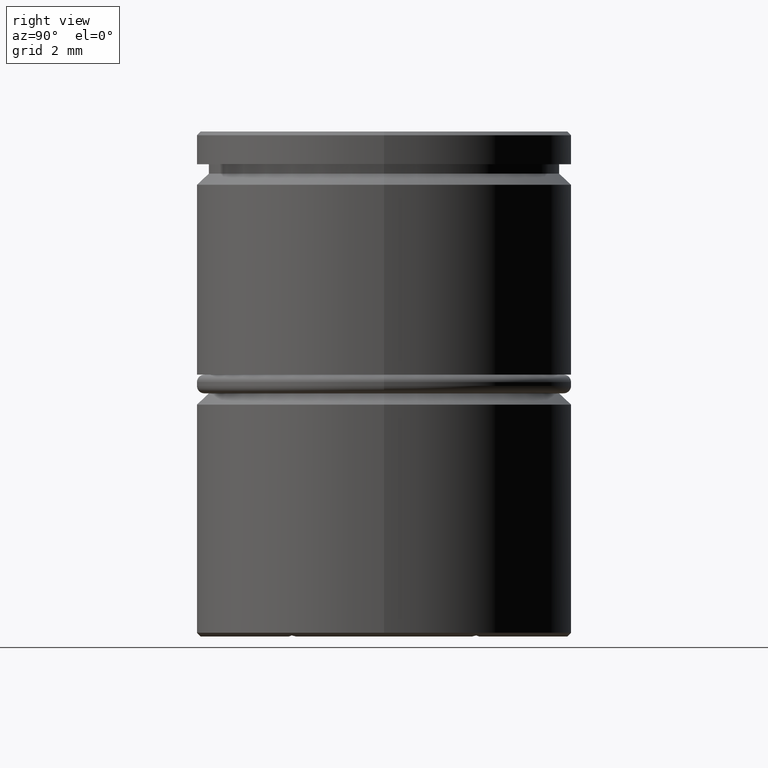
[diagram: clean part render]
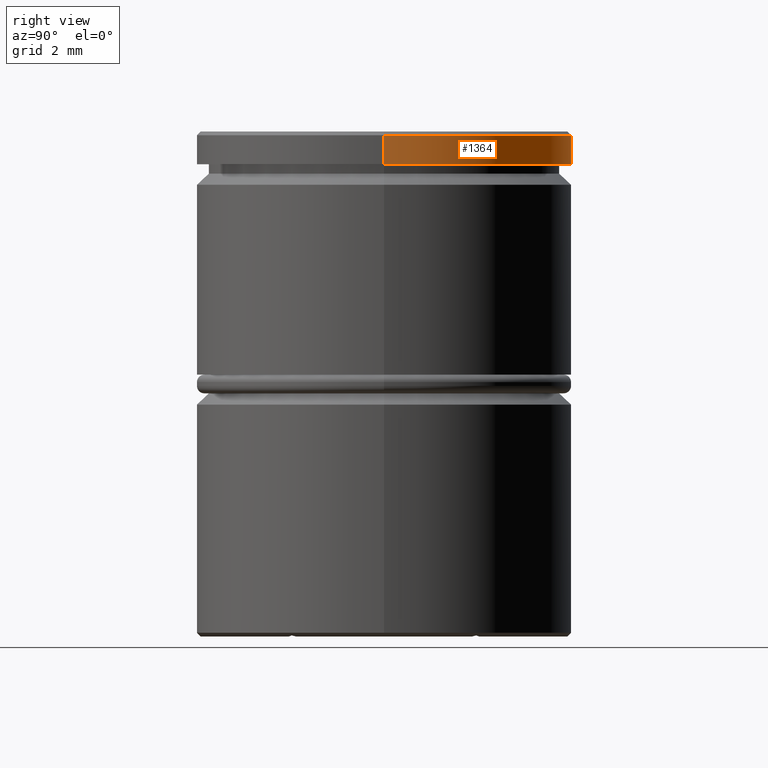
[diagram: same view with one face highlighted and labeled with its STEP entity id]
A machine part, right view. The second image highlights one B-rep face of the part: STEP entity #1364.
In plain terms, the highlighted cylindrical surface (partial cylindrical patch) has radius 5 mm, axis along (-0, -0, 1).
Its self-contained STEP definition (entity closure, byte-faithful):
#8 = ORIENTED_EDGE ( 'NONE', *, *, #1347, .T. ) ;
#24 = EDGE_CURVE ( 'NONE', #83, #971, #110, .T. ) ;
#79 = AXIS2_PLACEMENT_3D ( 'NONE', #919, #714, #297 ) ;
#83 = VERTEX_POINT ( 'NONE', #428 ) ;
#110 = LINE ( 'NONE', #449, #826 ) ;
#125 = VECTOR ( 'NONE', #899, 1000.000000000000000 ) ;
#205 = EDGE_LOOP ( 'NONE', ( #8, #726, #844, #373 ) ) ;
#223 = AXIS2_PLACEMENT_3D ( 'NONE', #669, #230, #772 ) ;
#230 = DIRECTION ( 'NONE',  ( -0.000000000000000000, -0.000000000000000000, 1.000000000000000000 ) ) ;
#238 = EDGE_CURVE ( 'NONE', #488, #971, #310, .T. ) ;
#297 = DIRECTION ( 'NONE',  ( 1.000000000000000000, 0.000000000000000000, 0.000000000000000000 ) ) ;
#310 = CIRCLE ( 'NONE', #79, 5.000000000000000000 ) ;
#317 = AXIS2_PLACEMENT_3D ( 'NONE', #1193, #1187, #360 ) ;
#331 = CARTESIAN_POINT ( 'NONE',  ( -5.000000000000000000, 6.123233995736766282E-16, -0.09999999999999506506 ) ) ;
#360 = DIRECTION ( 'NONE',  ( 1.000000000000000000, 0.000000000000000000, 0.000000000000000000 ) ) ;
#373 = ORIENTED_EDGE ( 'NONE', *, *, #24, .F. ) ;
#428 = CARTESIAN_POINT ( 'NONE',  ( 5.000000000000000000, 0.000000000000000000, -0.8749999999999998890 ) ) ;
#449 = CARTESIAN_POINT ( 'NONE',  ( 5.000000000000000000, 0.000000000000000000, 0.000000000000000000 ) ) ;
#488 = VERTEX_POINT ( 'NONE', #331 ) ;
#669 = CARTESIAN_POINT ( 'NONE',  ( 0.000000000000000000, 0.000000000000000000, -0.8749999999999998890 ) ) ;
#704 = CARTESIAN_POINT ( 'NONE',  ( -5.000000000000000000, 6.123233995736766282E-16, 0.000000000000000000 ) ) ;
#714 = DIRECTION ( 'NONE',  ( 0.000000000000000000, 0.000000000000000000, -1.000000000000000000 ) ) ;
#726 = ORIENTED_EDGE ( 'NONE', *, *, #1203, .T. ) ;
#772 = DIRECTION ( 'NONE',  ( 1.000000000000000000, 0.000000000000000000, 0.000000000000000000 ) ) ;
#826 = VECTOR ( 'NONE', #1288, 1000.000000000000000 ) ;
#844 = ORIENTED_EDGE ( 'NONE', *, *, #238, .T. ) ;
#860 = CARTESIAN_POINT ( 'NONE',  ( 5.000000000000000000, 0.000000000000000000, -0.09999999999999506506 ) ) ;
#899 = DIRECTION ( 'NONE',  ( -0.000000000000000000, -0.000000000000000000, 1.000000000000000000 ) ) ;
#919 = CARTESIAN_POINT ( 'NONE',  ( 0.000000000000000000, 0.000000000000000000, -0.09999999999999506506 ) ) ;
#971 = VERTEX_POINT ( 'NONE', #860 ) ;
#1035 = CARTESIAN_POINT ( 'NONE',  ( -5.000000000000000000, 6.123233995736766282E-16, -0.8749999999999998890 ) ) ;
#1089 = CYLINDRICAL_SURFACE ( 'NONE', #317, 5.000000000000000000 ) ;
#1130 = LINE ( 'NONE', #704, #125 ) ;
#1179 = FACE_OUTER_BOUND ( 'NONE', #205, .T. ) ;
#1187 = DIRECTION ( 'NONE',  ( -0.000000000000000000, -0.000000000000000000, 1.000000000000000000 ) ) ;
#1193 = CARTESIAN_POINT ( 'NONE',  ( 0.000000000000000000, 0.000000000000000000, 0.000000000000000000 ) ) ;
#1203 = EDGE_CURVE ( 'NONE', #1272, #488, #1130, .T. ) ;
#1272 = VERTEX_POINT ( 'NONE', #1035 ) ;
#1288 = DIRECTION ( 'NONE',  ( -0.000000000000000000, -0.000000000000000000, 1.000000000000000000 ) ) ;
#1332 = CIRCLE ( 'NONE', #223, 5.000000000000000000 ) ;
#1347 = EDGE_CURVE ( 'NONE', #83, #1272, #1332, .T. ) ;
#1364 = ADVANCED_FACE ( 'NONE', ( #1179 ), #1089, .T. ) ;